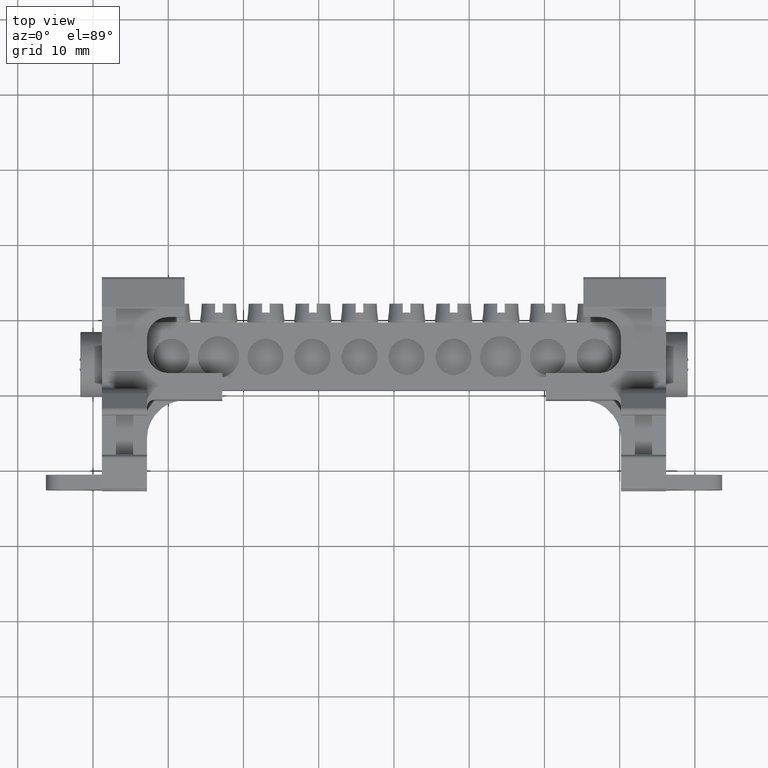
[diagram: clean part render]
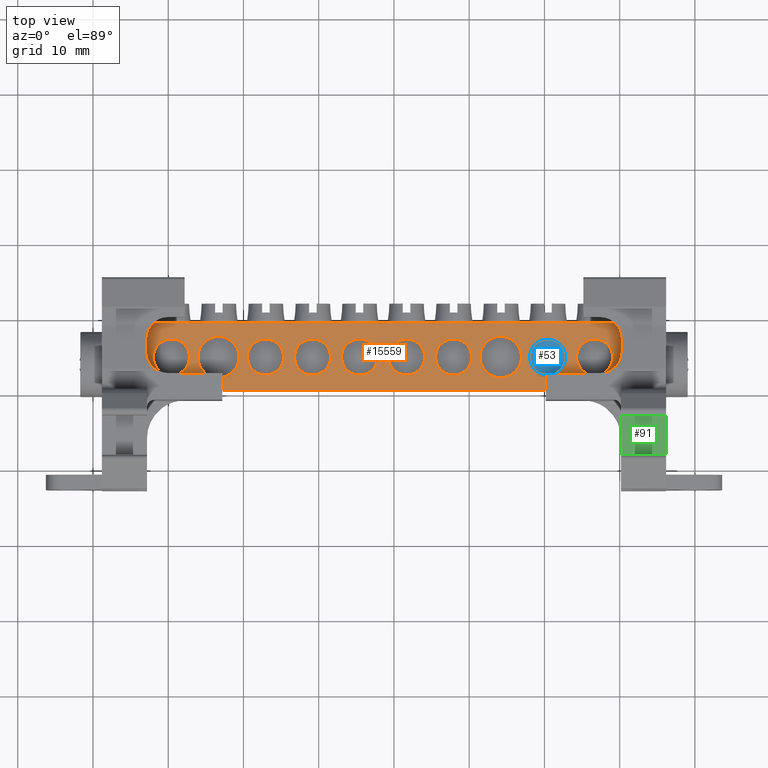
[diagram: same view with three faces highlighted in distinct colors, each labeled with its STEP entity id]
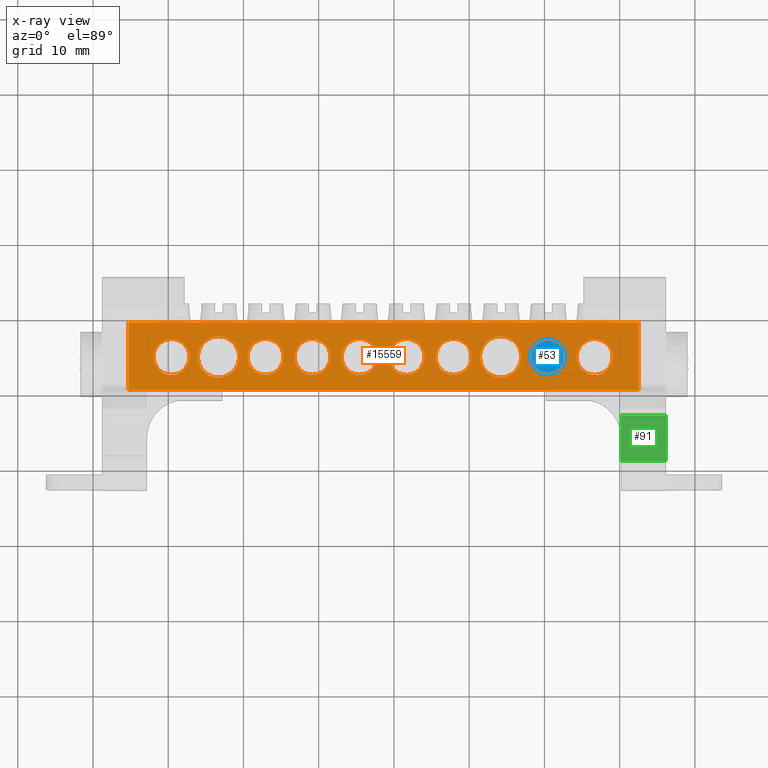
[diagram: x-ray of the same camera — body ghosted, the three highlighted faces saturated]
A machine part, top view with three faces highlighted in distinct colors.
The next image is the same camera in x-ray (body ghosted, the three faces saturated) — at least one of them is partly hidden behind the body in this view.
Their STEP definitions:

[orange] entity #15559 — the highlighted planar face has unit normal (-0, -0, 1).
#558 = AXIS2_PLACEMENT_3D ( 'NONE', #14377, #14375, #14341 ) ;
#1424 = CARTESIAN_POINT ( 'NONE',  ( -125.2916458143860400, -92.94444836901618600, 219.2213441700686800 ) ) ;
#2645 = LINE ( 'NONE', #2664, #13719 ) ;
#2664 = CARTESIAN_POINT ( 'NONE',  ( -69.82164581438648600, -90.50918132485030300, 219.2213441700660300 ) ) ;
#2713 = DIRECTION ( 'NONE',  ( -0.0000000000000000000, 1.000000000000000000, 1.302291607885310100E-013 ) ) ;
#2714 = LINE ( 'NONE', #2738, #13747 ) ;
#2715 = DIRECTION ( 'NONE',  ( -1.000000000000000000, -1.102107995711174800E-014, -1.434654200961729300E-027 ) ) ;
#2728 = CARTESIAN_POINT ( 'NONE',  ( -76.27164581438640300, -99.50918132485034600, 219.2213441700647500 ) ) ;
#2730 = LINE ( 'NONE', #2728, #13734 ) ;
#2738 = CARTESIAN_POINT ( 'NONE',  ( -76.27164581438650300, -90.50918132485034600, 219.2213441700660300 ) ) ;
#2750 = DIRECTION ( 'NONE',  ( 1.000000000000000000, 1.102107995711174800E-014, 1.434654200961729300E-027 ) ) ;
#2780 = CARTESIAN_POINT ( 'NONE',  ( -57.47164581438641300, -99.50918132484949300, 219.2213441700649000 ) ) ;
#2788 = LINE ( 'NONE', #2780, #13804 ) ;
#2799 = DIRECTION ( 'NONE',  ( -1.102107995711145400E-014, 1.000000000000000000, -0.0000000000000000000 ) ) ;
#3927 = VERTEX_POINT ( 'NONE', #16628 ) ;
#3942 = VERTEX_POINT ( 'NONE', #16654 ) ;
#3964 = VERTEX_POINT ( 'NONE', #16645 ) ;
#3988 = VERTEX_POINT ( 'NONE', #16706 ) ;
#3989 = VERTEX_POINT ( 'NONE', #16669 ) ;
#3990 = VERTEX_POINT ( 'NONE', #16698 ) ;
#4018 = VERTEX_POINT ( 'NONE', #16680 ) ;
#4030 = VERTEX_POINT ( 'NONE', #16719 ) ;
#4056 = VERTEX_POINT ( 'NONE', #6465 ) ;
#4080 = VERTEX_POINT ( 'NONE', #5886 ) ;
#4085 = VERTEX_POINT ( 'NONE', #5870 ) ;
#4113 = VERTEX_POINT ( 'NONE', #5861 ) ;
#4114 = VERTEX_POINT ( 'NONE', #5862 ) ;
#4117 = VERTEX_POINT ( 'NONE', #5877 ) ;
#4121 = VERTEX_POINT ( 'NONE', #5895 ) ;
#4132 = VERTEX_POINT ( 'NONE', #5898 ) ;
#4134 = VERTEX_POINT ( 'NONE', #5894 ) ;
#4143 = VERTEX_POINT ( 'NONE', #5908 ) ;
#4145 = VERTEX_POINT ( 'NONE', #5915 ) ;
#4146 = VERTEX_POINT ( 'NONE', #5916 ) ;
#4151 = VERTEX_POINT ( 'NONE', #5958 ) ;
#4155 = VERTEX_POINT ( 'NONE', #5933 ) ;
#4158 = VERTEX_POINT ( 'NONE', #5940 ) ;
#4160 = VERTEX_POINT ( 'NONE', #5955 ) ;
#4171 = VERTEX_POINT ( 'NONE', #5941 ) ;
#4172 = VERTEX_POINT ( 'NONE', #5942 ) ;
#4220 = VERTEX_POINT ( 'NONE', #5973 ) ;
#4238 = VERTEX_POINT ( 'NONE', #6016 ) ;
#5072 = ORIENTED_EDGE ( 'NONE', *, *, #10482, .T. ) ;
#5075 = ORIENTED_EDGE ( 'NONE', *, *, #10366, .T. ) ;
#5077 = ORIENTED_EDGE ( 'NONE', *, *, #16877, .T. ) ;
#5080 = ORIENTED_EDGE ( 'NONE', *, *, #10615, .T. ) ;
#5081 = ORIENTED_EDGE ( 'NONE', *, *, #10604, .T. ) ;
#5093 = ORIENTED_EDGE ( 'NONE', *, *, #10463, .T. ) ;
#5095 = ORIENTED_EDGE ( 'NONE', *, *, #16826, .T. ) ;
#5101 = ORIENTED_EDGE ( 'NONE', *, *, #10401, .T. ) ;
#5102 = ORIENTED_EDGE ( 'NONE', *, *, #16859, .T. ) ;
#5113 = ORIENTED_EDGE ( 'NONE', *, *, #10456, .T. ) ;
#5114 = ORIENTED_EDGE ( 'NONE', *, *, #10435, .T. ) ;
#5124 = ORIENTED_EDGE ( 'NONE', *, *, #16751, .T. ) ;
#5128 = ORIENTED_EDGE ( 'NONE', *, *, #10282, .T. ) ;
#5137 = ORIENTED_EDGE ( 'NONE', *, *, #10658, .T. ) ;
#5142 = ORIENTED_EDGE ( 'NONE', *, *, #10565, .T. ) ;
#5147 = ORIENTED_EDGE ( 'NONE', *, *, #10538, .T. ) ;
#5150 = ORIENTED_EDGE ( 'NONE', *, *, #16804, .T. ) ;
#5154 = ORIENTED_EDGE ( 'NONE', *, *, #10450, .T. ) ;
#5161 = ORIENTED_EDGE ( 'NONE', *, *, #10373, .T. ) ;
#5171 = ORIENTED_EDGE ( 'NONE', *, *, #16831, .T. ) ;
#5177 = ORIENTED_EDGE ( 'NONE', *, *, #16853, .T. ) ;
#5179 = ORIENTED_EDGE ( 'NONE', *, *, #10443, .T. ) ;
#5188 = ORIENTED_EDGE ( 'NONE', *, *, #16857, .T. ) ;
#5189 = ORIENTED_EDGE ( 'NONE', *, *, #10493, .T. ) ;
#5195 = ORIENTED_EDGE ( 'NONE', *, *, #10461, .T. ) ;
#5196 = ORIENTED_EDGE ( 'NONE', *, *, #10598, .T. ) ;
#5224 = ORIENTED_EDGE ( 'NONE', *, *, #10445, .T. ) ;
#5233 = ORIENTED_EDGE ( 'NONE', *, *, #16761, .T. ) ;
#5257 = ORIENTED_EDGE ( 'NONE', *, *, #16779, .T. ) ;
#5861 = CARTESIAN_POINT ( 'NONE',  ( -107.0716458143865100, -92.70918132485073200, 219.2213441700652900 ) ) ;
#5862 = CARTESIAN_POINT ( 'NONE',  ( -107.0716458143865100, -97.50918132485072900, 219.2213441700647000 ) ) ;
#5870 = CARTESIAN_POINT ( 'NONE',  ( -69.57164581438650000, -92.70918132485049100, 219.2213441700658600 ) ) ;
#5877 = CARTESIAN_POINT ( 'NONE',  ( -113.3216458143865100, -97.85918132485073800, 219.2213441700646400 ) ) ;
#5886 = CARTESIAN_POINT ( 'NONE',  ( -69.57164581438650000, -97.50918132485048800, 219.2213441700652700 ) ) ;
#5894 = CARTESIAN_POINT ( 'NONE',  ( -113.3216458143865100, -92.35918132485072400, 219.2213441700653500 ) ) ;
#5895 = CARTESIAN_POINT ( 'NONE',  ( -82.07164581438650000, -92.70918132485059000, 219.2213441700652900 ) ) ;
#5898 = CARTESIAN_POINT ( 'NONE',  ( -75.82164581438640000, -97.85918132485049600, 219.2213441700646400 ) ) ;
#5908 = CARTESIAN_POINT ( 'NONE',  ( -94.57164581438641400, -97.50918132485082900, 219.2213441700650700 ) ) ;
#5915 = CARTESIAN_POINT ( 'NONE',  ( -82.07164581438650000, -97.50918132485058700, 219.2213441700647000 ) ) ;
#5916 = CARTESIAN_POINT ( 'NONE',  ( -119.5716458143864000, -92.70918132485080300, 219.2213441700652900 ) ) ;
#5933 = CARTESIAN_POINT ( 'NONE',  ( -94.57164581438641400, -92.70918132485083200, 219.2213441700656600 ) ) ;
#5940 = CARTESIAN_POINT ( 'NONE',  ( -88.32164581438644300, -92.70918132485083200, 219.2213441700656600 ) ) ;
#5941 = CARTESIAN_POINT ( 'NONE',  ( -100.8216458143865000, -97.50918132485058700, 219.2213441700647000 ) ) ;
#5942 = CARTESIAN_POINT ( 'NONE',  ( -63.32164581438640000, -97.50918132485040200, 219.2213441700652700 ) ) ;
#5955 = CARTESIAN_POINT ( 'NONE',  ( -119.5716458143864000, -97.50918132485080000, 219.2213441700647000 ) ) ;
#5958 = CARTESIAN_POINT ( 'NONE',  ( -75.82164581438640000, -92.35918132485049600, 219.2213441700653500 ) ) ;
#5973 = CARTESIAN_POINT ( 'NONE',  ( -100.8216458143865000, -92.70918132485059000, 219.2213441700652900 ) ) ;
#6016 = CARTESIAN_POINT ( 'NONE',  ( -63.32164581438640000, -92.70918132485039100, 219.2213441700658600 ) ) ;
#6465 = CARTESIAN_POINT ( 'NONE',  ( -88.32164581438644300, -97.50918132485082900, 219.2213441700650700 ) ) ;
#8324 = EDGE_LOOP ( 'NONE', ( #5080, #5114, #5075, #5161, #5142, #5196, #5081, #5147, #5137 ) ) ;
#8345 = EDGE_LOOP ( 'NONE', ( #5128, #5095 ) ) ;
#8359 = EDGE_LOOP ( 'NONE', ( #5093, #5077 ) ) ;
#8362 = EDGE_LOOP ( 'NONE', ( #5113, #5102 ) ) ;
#8386 = EDGE_LOOP ( 'NONE', ( #5072, #5233 ) ) ;
#8398 = EDGE_LOOP ( 'NONE', ( #5101, #5124 ) ) ;
#8427 = EDGE_LOOP ( 'NONE', ( #5224, #5177 ) ) ;
#8438 = EDGE_LOOP ( 'NONE', ( #5179, #5171 ) ) ;
#8474 = EDGE_LOOP ( 'NONE', ( #5195, #5188 ) ) ;
#8494 = EDGE_LOOP ( 'NONE', ( #5154, #5257 ) ) ;
#8496 = EDGE_LOOP ( 'NONE', ( #5189, #5150 ) ) ;
#9348 = CARTESIAN_POINT ( 'NONE',  ( -82.07164581438650000, -95.10918132485059600, 219.2213441700650100 ) ) ;
#9349 = DIRECTION ( 'NONE',  ( 2.356061070560435300E-015, 1.299516050323746000E-013, -1.000000000000000000 ) ) ;
#9351 = DIRECTION ( 'NONE',  ( 0.0000000000000000000, 1.000000000000000000, 1.272130549049658700E-013 ) ) ;
#9809 = CARTESIAN_POINT ( 'NONE',  ( -125.2916458143859600, -90.50918132485030300, 219.2213441700658900 ) ) ;
#9810 = DIRECTION ( 'NONE',  ( 0.0000000000000000000, -1.000000000000000000, -1.302291607885310100E-013 ) ) ;
#9822 = LINE ( 'NONE', #9809, #13636 ) ;
#9844 = DIRECTION ( 'NONE',  ( 1.000000000000000000, -3.068278559856131500E-028, 2.356061070560432900E-015 ) ) ;
#9848 = CARTESIAN_POINT ( 'NONE',  ( -76.27164581438650300, -99.50797067425703800, 219.2213441700648400 ) ) ;
#9896 = LINE ( 'NONE', #9848, #13617 ) ;
#10282 = EDGE_CURVE ( 'NONE', #4121, #4145, #13565, .T. ) ;
#10366 = EDGE_CURVE ( 'NONE', #20506, #3927, #9822, .T. ) ;
#10373 = EDGE_CURVE ( 'NONE', #3927, #3989, #9896, .T. ) ;
#10401 = EDGE_CURVE ( 'NONE', #4158, #4056, #13637, .T. ) ;
#10435 = EDGE_CURVE ( 'NONE', #3988, #20506, #13067, .T. ) ;
#10443 = EDGE_CURVE ( 'NONE', #4146, #4160, #13607, .T. ) ;
#10445 = EDGE_CURVE ( 'NONE', #4113, #4114, #13646, .T. ) ;
#10450 = EDGE_CURVE ( 'NONE', #4220, #4171, #13694, .T. ) ;
#10456 = EDGE_CURVE ( 'NONE', #4151, #4132, #13647, .T. ) ;
#10461 = EDGE_CURVE ( 'NONE', #4134, #4117, #13641, .T. ) ;
#10463 = EDGE_CURVE ( 'NONE', #4155, #4143, #13661, .T. ) ;
#10482 = EDGE_CURVE ( 'NONE', #4085, #4080, #13687, .T. ) ;
#10493 = EDGE_CURVE ( 'NONE', #4238, #4172, #13663, .T. ) ;
#10538 = EDGE_CURVE ( 'NONE', #3942, #4030, #12716, .T. ) ;
#10565 = EDGE_CURVE ( 'NONE', #3989, #3964, #12816, .T. ) ;
#10598 = EDGE_CURVE ( 'NONE', #3964, #4018, #2730, .T. ) ;
#10604 = EDGE_CURVE ( 'NONE', #4018, #3942, #2645, .T. ) ;
#10615 = EDGE_CURVE ( 'NONE', #3990, #3988, #2714, .T. ) ;
#10658 = EDGE_CURVE ( 'NONE', #4030, #3990, #2788, .T. ) ;
#12716 = LINE ( 'NONE', #12718, #13662 ) ;
#12718 = CARTESIAN_POINT ( 'NONE',  ( -49.83724615968759500, -99.50797067425483500, 219.2213441700648400 ) ) ;
#12748 = DIRECTION ( 'NONE',  ( 1.000000000000000000, 1.100161628464520100E-014, 1.440180480661057200E-027 ) ) ;
#12777 = DIRECTION ( 'NONE',  ( 0.0000000000000000000, -1.000000000000000000, -1.302291607885310100E-013 ) ) ;
#12779 = CARTESIAN_POINT ( 'NONE',  ( -112.8216458143857200, -90.50918132485030300, 219.2213441700659200 ) ) ;
#12816 = LINE ( 'NONE', #12779, #13759 ) ;
#13014 = CARTESIAN_POINT ( 'NONE',  ( -88.32164581438644300, -95.10918132485082300, 219.2213441700653500 ) ) ;
#13043 = DIRECTION ( 'NONE',  ( 2.356061070560435300E-015, 1.300071161836058300E-013, -1.000000000000000000 ) ) ;
#13051 = DIRECTION ( 'NONE',  ( 0.0000000000000000000, 1.000000000000000000, 1.272130549049658700E-013 ) ) ;
#13060 = DIRECTION ( 'NONE',  ( 2.356061070560435300E-015, 1.299516050323746000E-013, -1.000000000000000000 ) ) ;
#13062 = DIRECTION ( 'NONE',  ( 2.356061070560435300E-015, 1.299516050323746000E-013, -1.000000000000000000 ) ) ;
#13064 = DIRECTION ( 'NONE',  ( 2.356061070560435300E-015, 1.299516050323746000E-013, -1.000000000000000000 ) ) ;
#13065 = CARTESIAN_POINT ( 'NONE',  ( -119.5716458143864000, -95.10918132485079500, 219.2213441700650100 ) ) ;
#13067 = LINE ( 'NONE', #13081, #13603 ) ;
#13068 = DIRECTION ( 'NONE',  ( 0.0000000000000000000, 1.000000000000000000, 1.272130549049658700E-013 ) ) ;
#13071 = DIRECTION ( 'NONE',  ( 0.0000000000000000000, -1.000000000000000000, -1.302291607885310100E-013 ) ) ;
#13072 = CARTESIAN_POINT ( 'NONE',  ( -75.82164581438640000, -95.10918132485049600, 219.2213441700650100 ) ) ;
#13074 = DIRECTION ( 'NONE',  ( 0.0000000000000000000, 1.000000000000000000, 1.312081756375183700E-013 ) ) ;
#13075 = DIRECTION ( 'NONE',  ( 2.356061070560435300E-015, 1.299516050323746000E-013, -1.000000000000000000 ) ) ;
#13081 = CARTESIAN_POINT ( 'NONE',  ( -125.2916458143864000, -90.50918132485030300, 219.2213441700658900 ) ) ;
#13082 = CARTESIAN_POINT ( 'NONE',  ( -100.8216458143865000, -95.10918132485059600, 219.2213441700650100 ) ) ;
#13085 = DIRECTION ( 'NONE',  ( 2.356061070560435300E-015, 1.299516050323746000E-013, -1.000000000000000000 ) ) ;
#13091 = CARTESIAN_POINT ( 'NONE',  ( -107.0716458143865100, -95.10918132485072400, 219.2213441700650100 ) ) ;
#13096 = DIRECTION ( 'NONE',  ( 0.0000000000000000000, 1.000000000000000000, 1.272130549049658700E-013 ) ) ;
#13097 = DIRECTION ( 'NONE',  ( 0.0000000000000000000, 1.000000000000000000, 1.272130549049658700E-013 ) ) ;
#13113 = CARTESIAN_POINT ( 'NONE',  ( -69.57164581438650000, -95.10918132485049600, 219.2213441700655500 ) ) ;
#13114 = DIRECTION ( 'NONE',  ( 0.0000000000000000000, 1.000000000000000000, 1.272130549049658700E-013 ) ) ;
#13115 = DIRECTION ( 'NONE',  ( 2.356061070560435300E-015, 1.299516050323746000E-013, -1.000000000000000000 ) ) ;
#13116 = DIRECTION ( 'NONE',  ( 0.0000000000000000000, 1.000000000000000000, 1.312081756375183700E-013 ) ) ;
#13117 = DIRECTION ( 'NONE',  ( 2.356061070560435300E-015, 1.300071161836058300E-013, -1.000000000000000000 ) ) ;
#13118 = CARTESIAN_POINT ( 'NONE',  ( -94.57164581438641400, -95.10918132485082300, 219.2213441700653500 ) ) ;
#13124 = CARTESIAN_POINT ( 'NONE',  ( -113.3216458143865100, -95.10918132485072400, 219.2213441700650100 ) ) ;
#13517 = AXIS2_PLACEMENT_3D ( 'NONE', #9348, #9349, #9351 ) ;
#13565 = CIRCLE ( 'NONE', #13517, 2.399999999999999500 ) ;
#13603 = VECTOR ( 'NONE', #13071, 1000.000000000000000 ) ;
#13607 = CIRCLE ( 'NONE', #13608, 2.399999999999999500 ) ;
#13608 = AXIS2_PLACEMENT_3D ( 'NONE', #13065, #13064, #13097 ) ;
#13617 = VECTOR ( 'NONE', #9844, 1000.000000000000000 ) ;
#13636 = VECTOR ( 'NONE', #9810, 1000.000000000000000 ) ;
#13637 = CIRCLE ( 'NONE', #13638, 2.399999999999999500 ) ;
#13638 = AXIS2_PLACEMENT_3D ( 'NONE', #13014, #13043, #13051 ) ;
#13641 = CIRCLE ( 'NONE', #13670, 2.750000000000002700 ) ;
#13644 = AXIS2_PLACEMENT_3D ( 'NONE', #13072, #13062, #13074 ) ;
#13646 = CIRCLE ( 'NONE', #13679, 2.399999999999999500 ) ;
#13647 = CIRCLE ( 'NONE', #13644, 2.750000000000002700 ) ;
#13651 = AXIS2_PLACEMENT_3D ( 'NONE', #13118, #13117, #13114 ) ;
#13661 = CIRCLE ( 'NONE', #13651, 2.399999999999999500 ) ;
#13662 = VECTOR ( 'NONE', #12748, 1000.000000000000000 ) ;
#13663 = CIRCLE ( 'NONE', #13689, 2.399999999999999500 ) ;
#13670 = AXIS2_PLACEMENT_3D ( 'NONE', #13124, #13115, #13116 ) ;
#13679 = AXIS2_PLACEMENT_3D ( 'NONE', #13091, #13060, #13096 ) ;
#13682 = AXIS2_PLACEMENT_3D ( 'NONE', #13113, #13075, #21573 ) ;
#13684 = AXIS2_PLACEMENT_3D ( 'NONE', #13082, #13085, #13068 ) ;
#13687 = CIRCLE ( 'NONE', #13682, 2.399999999999999500 ) ;
#13689 = AXIS2_PLACEMENT_3D ( 'NONE', #21567, #21547, #21569 ) ;
#13694 = CIRCLE ( 'NONE', #13684, 2.399999999999999500 ) ;
#13719 = VECTOR ( 'NONE', #2713, 1000.000000000000000 ) ;
#13734 = VECTOR ( 'NONE', #2750, 1000.000000000000000 ) ;
#13747 = VECTOR ( 'NONE', #2715, 1000.000000000000000 ) ;
#13759 = VECTOR ( 'NONE', #12777, 1000.000000000000000 ) ;
#13804 = VECTOR ( 'NONE', #2799, 1000.000000000000000 ) ;
#14328 = FACE_OUTER_BOUND ( 'NONE', #8324, .T. ) ;
#14334 = FACE_BOUND ( 'NONE', #8427, .T. ) ;
#14335 = FACE_BOUND ( 'NONE', #8474, .T. ) ;
#14340 = FACE_BOUND ( 'NONE', #8345, .T. ) ;
#14341 = DIRECTION ( 'NONE',  ( 0.0000000000000000000, -1.000000000000000000, -1.302291607885310100E-013 ) ) ;
#14347 = FACE_BOUND ( 'NONE', #8496, .T. ) ;
#14348 = FACE_BOUND ( 'NONE', #8386, .T. ) ;
#14363 = FACE_BOUND ( 'NONE', #8398, .T. ) ;
#14366 = FACE_BOUND ( 'NONE', #8494, .T. ) ;
#14367 = FACE_BOUND ( 'NONE', #8359, .T. ) ;
#14368 = PLANE ( 'NONE',  #558 ) ;
#14372 = FACE_BOUND ( 'NONE', #8362, .T. ) ;
#14373 = FACE_BOUND ( 'NONE', #8438, .T. ) ;
#14375 = DIRECTION ( 'NONE',  ( -2.356061070560432900E-015, -1.302291607885310100E-013, 1.000000000000000000 ) ) ;
#14377 = CARTESIAN_POINT ( 'NONE',  ( -76.27164581438650300, -90.50918132485030300, 219.2213441700660000 ) ) ;
#15559 = ADVANCED_FACE ( 'NONE', ( #14328, #14367, #14363, #14340, #14372, #14348, #14347, #14366, #14373, #14335, #14334 ), #14368, .T. ) ;
#16628 = CARTESIAN_POINT ( 'NONE',  ( -125.2916458143859300, -99.50797067425703800, 219.2213441700647000 ) ) ;
#16645 = CARTESIAN_POINT ( 'NONE',  ( -112.8216458143857000, -99.50918132485074400, 219.2213441700647500 ) ) ;
#16654 = CARTESIAN_POINT ( 'NONE',  ( -69.82164581438648600, -99.50797067425506300, 219.2213441700648400 ) ) ;
#16669 = CARTESIAN_POINT ( 'NONE',  ( -112.8216458143857200, -99.50797067425701000, 219.2213441700647500 ) ) ;
#16680 = CARTESIAN_POINT ( 'NONE',  ( -69.82164581438648600, -99.50918132485027500, 219.2213441700648100 ) ) ;
#16698 = CARTESIAN_POINT ( 'NONE',  ( -57.47164581438651300, -90.50918132485020400, 219.2213441700652700 ) ) ;
#16706 = CARTESIAN_POINT ( 'NONE',  ( -125.2916458143864000, -90.50918132485085700, 219.2213441700659200 ) ) ;
#16719 = CARTESIAN_POINT ( 'NONE',  ( -57.47164581438641300, -99.50797067425438100, 219.2213441700648700 ) ) ;
#16751 = EDGE_CURVE ( 'NONE', #4056, #4158, #23380, .T. ) ;
#16761 = EDGE_CURVE ( 'NONE', #4080, #4085, #23401, .T. ) ;
#16779 = EDGE_CURVE ( 'NONE', #4171, #4220, #23444, .T. ) ;
#16804 = EDGE_CURVE ( 'NONE', #4172, #4238, #23474, .T. ) ;
#16826 = EDGE_CURVE ( 'NONE', #4145, #4121, #23475, .T. ) ;
#16831 = EDGE_CURVE ( 'NONE', #4160, #4146, #23461, .T. ) ;
#16853 = EDGE_CURVE ( 'NONE', #4114, #4113, #23479, .T. ) ;
#16857 = EDGE_CURVE ( 'NONE', #4117, #4134, #23483, .T. ) ;
#16859 = EDGE_CURVE ( 'NONE', #4132, #4151, #23455, .T. ) ;
#16877 = EDGE_CURVE ( 'NONE', #4143, #4155, #23426, .T. ) ;
#20506 = VERTEX_POINT ( 'NONE', #1424 ) ;
#21547 = DIRECTION ( 'NONE',  ( 2.356061070560435300E-015, 1.299516050323746000E-013, -1.000000000000000000 ) ) ;
#21567 = CARTESIAN_POINT ( 'NONE',  ( -63.32164581438640000, -95.10918132485039700, 219.2213441700655500 ) ) ;
#21569 = DIRECTION ( 'NONE',  ( 0.0000000000000000000, 1.000000000000000000, 1.272130549049658700E-013 ) ) ;
#21573 = DIRECTION ( 'NONE',  ( 0.0000000000000000000, 1.000000000000000000, 1.272130549049658700E-013 ) ) ;
#22727 = DIRECTION ( 'NONE',  ( 0.0000000000000000000, 1.000000000000000000, 1.272130549049658700E-013 ) ) ;
#22742 = CARTESIAN_POINT ( 'NONE',  ( -88.32164581438644300, -95.10918132485082300, 219.2213441700653500 ) ) ;
#22763 = DIRECTION ( 'NONE',  ( 2.356061070560435300E-015, 1.300071161836058300E-013, -1.000000000000000000 ) ) ;
#22776 = DIRECTION ( 'NONE',  ( 0.0000000000000000000, 1.000000000000000000, 1.272130549049658700E-013 ) ) ;
#22783 = DIRECTION ( 'NONE',  ( 2.356061070560435300E-015, 1.299516050323746000E-013, -1.000000000000000000 ) ) ;
#22793 = CARTESIAN_POINT ( 'NONE',  ( -69.57164581438650000, -95.10918132485049600, 219.2213441700655500 ) ) ;
#22822 = DIRECTION ( 'NONE',  ( 2.356061070560435300E-015, 1.299516050323746000E-013, -1.000000000000000000 ) ) ;
#22840 = CARTESIAN_POINT ( 'NONE',  ( -100.8216458143865000, -95.10918132485059600, 219.2213441700650100 ) ) ;
#22842 = DIRECTION ( 'NONE',  ( 0.0000000000000000000, 1.000000000000000000, 1.272130549049658700E-013 ) ) ;
#22845 = DIRECTION ( 'NONE',  ( 2.356061070560435300E-015, 1.299516050323746000E-013, -1.000000000000000000 ) ) ;
#22849 = DIRECTION ( 'NONE',  ( 0.0000000000000000000, 1.000000000000000000, 1.272130549049658700E-013 ) ) ;
#22855 = CARTESIAN_POINT ( 'NONE',  ( -63.32164581438640000, -95.10918132485039700, 219.2213441700655500 ) ) ;
#22864 = CARTESIAN_POINT ( 'NONE',  ( -82.07164581438650000, -95.10918132485059600, 219.2213441700650100 ) ) ;
#22866 = DIRECTION ( 'NONE',  ( 0.0000000000000000000, 1.000000000000000000, 1.272130549049658700E-013 ) ) ;
#22873 = CARTESIAN_POINT ( 'NONE',  ( -119.5716458143864000, -95.10918132485079500, 219.2213441700650100 ) ) ;
#22877 = DIRECTION ( 'NONE',  ( 2.356061070560435300E-015, 1.299516050323746000E-013, -1.000000000000000000 ) ) ;
#22883 = DIRECTION ( 'NONE',  ( 2.356061070560435300E-015, 1.299516050323746000E-013, -1.000000000000000000 ) ) ;
#22899 = DIRECTION ( 'NONE',  ( 0.0000000000000000000, 1.000000000000000000, 1.272130549049658700E-013 ) ) ;
#22907 = DIRECTION ( 'NONE',  ( 2.356061070560435300E-015, 1.299516050323746000E-013, -1.000000000000000000 ) ) ;
#22909 = CARTESIAN_POINT ( 'NONE',  ( -113.3216458143865100, -95.10918132485072400, 219.2213441700650100 ) ) ;
#22910 = CARTESIAN_POINT ( 'NONE',  ( -107.0716458143865100, -95.10918132485072400, 219.2213441700650100 ) ) ;
#22912 = DIRECTION ( 'NONE',  ( 2.356061070560435300E-015, 1.300071161836058300E-013, -1.000000000000000000 ) ) ;
#22913 = DIRECTION ( 'NONE',  ( 2.356061070560435300E-015, 1.299516050323746000E-013, -1.000000000000000000 ) ) ;
#22921 = DIRECTION ( 'NONE',  ( 0.0000000000000000000, 1.000000000000000000, 1.312081756375183700E-013 ) ) ;
#22922 = DIRECTION ( 'NONE',  ( 0.0000000000000000000, 1.000000000000000000, 1.272130549049658700E-013 ) ) ;
#22925 = CARTESIAN_POINT ( 'NONE',  ( -75.82164581438640000, -95.10918132485049600, 219.2213441700650100 ) ) ;
#22927 = DIRECTION ( 'NONE',  ( 0.0000000000000000000, 1.000000000000000000, 1.272130549049658700E-013 ) ) ;
#22929 = DIRECTION ( 'NONE',  ( 0.0000000000000000000, 1.000000000000000000, 1.312081756375183700E-013 ) ) ;
#22936 = CARTESIAN_POINT ( 'NONE',  ( -94.57164581438641400, -95.10918132485082300, 219.2213441700653500 ) ) ;
#22937 = DIRECTION ( 'NONE',  ( 2.356061070560435300E-015, 1.299516050323746000E-013, -1.000000000000000000 ) ) ;
#23380 = CIRCLE ( 'NONE', #23384, 2.399999999999999500 ) ;
#23384 = AXIS2_PLACEMENT_3D ( 'NONE', #22742, #22763, #22727 ) ;
#23390 = AXIS2_PLACEMENT_3D ( 'NONE', #22793, #22783, #22776 ) ;
#23401 = CIRCLE ( 'NONE', #23390, 2.399999999999999500 ) ;
#23426 = CIRCLE ( 'NONE', #23433, 2.399999999999999500 ) ;
#23430 = AXIS2_PLACEMENT_3D ( 'NONE', #22910, #22907, #22922 ) ;
#23433 = AXIS2_PLACEMENT_3D ( 'NONE', #22936, #22912, #22927 ) ;
#23439 = AXIS2_PLACEMENT_3D ( 'NONE', #22925, #22913, #22929 ) ;
#23444 = CIRCLE ( 'NONE', #23468, 2.399999999999999500 ) ;
#23452 = AXIS2_PLACEMENT_3D ( 'NONE', #22864, #22883, #22899 ) ;
#23455 = CIRCLE ( 'NONE', #23439, 2.750000000000002700 ) ;
#23458 = AXIS2_PLACEMENT_3D ( 'NONE', #22873, #22877, #22866 ) ;
#23461 = CIRCLE ( 'NONE', #23458, 2.399999999999999500 ) ;
#23466 = AXIS2_PLACEMENT_3D ( 'NONE', #22855, #22845, #22842 ) ;
#23468 = AXIS2_PLACEMENT_3D ( 'NONE', #22840, #22822, #22849 ) ;
#23472 = AXIS2_PLACEMENT_3D ( 'NONE', #22909, #22937, #22921 ) ;
#23474 = CIRCLE ( 'NONE', #23466, 2.399999999999999500 ) ;
#23475 = CIRCLE ( 'NONE', #23452, 2.399999999999999500 ) ;
#23479 = CIRCLE ( 'NONE', #23430, 2.399999999999999500 ) ;
#23483 = CIRCLE ( 'NONE', #23472, 2.750000000000002700 ) ;

[blue] entity #53 — the highlighted planar face has unit normal (0, 0, 1).
#53 = ADVANCED_FACE ( 'NONE', ( #17279 ), #17245, .T. ) ;
#2041 = AXIS2_PLACEMENT_3D ( 'NONE', #17243, #17276, #17277 ) ;
#4129 = VERTEX_POINT ( 'NONE', #5902 ) ;
#4140 = VERTEX_POINT ( 'NONE', #5906 ) ;
#4726 = ORIENTED_EDGE ( 'NONE', *, *, #16762, .T. ) ;
#4751 = ORIENTED_EDGE ( 'NONE', *, *, #10161, .T. ) ;
#5902 = CARTESIAN_POINT ( 'NONE',  ( -69.57164581438650000, -92.70918132485042000, 218.7213441700785400 ) ) ;
#5906 = CARTESIAN_POINT ( 'NONE',  ( -69.57164581438650000, -97.50918132485043100, 218.7213441700779400 ) ) ;
#8272 = EDGE_LOOP ( 'NONE', ( #4726, #4751 ) ) ;
#10161 = EDGE_CURVE ( 'NONE', #4140, #4129, #13458, .T. ) ;
#13458 = CIRCLE ( 'NONE', #13494, 2.399999999999999500 ) ;
#13494 = AXIS2_PLACEMENT_3D ( 'NONE', #22188, #22218, #22153 ) ;
#16762 = EDGE_CURVE ( 'NONE', #4129, #4140, #23413, .T. ) ;
#17243 = CARTESIAN_POINT ( 'NONE',  ( -57.97164581438640600, -99.00918132485030300, 218.7213441700779400 ) ) ;
#17245 = PLANE ( 'NONE',  #2041 ) ;
#17276 = DIRECTION ( 'NONE',  ( 0.0000000000000000000, 0.0000000000000000000, 1.000000000000000000 ) ) ;
#17277 = DIRECTION ( 'NONE',  ( 1.000000000000000000, 0.0000000000000000000, -0.0000000000000000000 ) ) ;
#17279 = FACE_OUTER_BOUND ( 'NONE', #8272, .T. ) ;
#22153 = DIRECTION ( 'NONE',  ( 0.0000000000000000000, 1.000000000000000000, 1.272130549049658700E-013 ) ) ;
#22188 = CARTESIAN_POINT ( 'NONE',  ( -69.57164581438650000, -95.10918132485042500, 218.7213441700782500 ) ) ;
#22218 = DIRECTION ( 'NONE',  ( -2.356061070560435300E-015, -1.299516050323746000E-013, 1.000000000000000000 ) ) ;
#22784 = DIRECTION ( 'NONE',  ( 0.0000000000000000000, 1.000000000000000000, 1.272130549049658700E-013 ) ) ;
#22796 = CARTESIAN_POINT ( 'NONE',  ( -69.57164581438650000, -95.10918132485042500, 218.7213441700782500 ) ) ;
#22799 = DIRECTION ( 'NONE',  ( -2.356061070560435300E-015, -1.299516050323746000E-013, 1.000000000000000000 ) ) ;
#23413 = CIRCLE ( 'NONE', #23422, 2.399999999999999500 ) ;
#23422 = AXIS2_PLACEMENT_3D ( 'NONE', #22796, #22799, #22784 ) ;

[green] entity #91 — the highlighted planar face has unit normal (0, 0, -1).
#91 = ADVANCED_FACE ( 'NONE', ( #17487 ), #17430, .F. ) ;
#774 = VECTOR ( 'NONE', #9436, 1000.000000000000000 ) ;
#805 = VECTOR ( 'NONE', #9550, 1000.000000000000000 ) ;
#2114 = AXIS2_PLACEMENT_3D ( 'NONE', #17472, #17462, #17465 ) ;
#3606 = VERTEX_POINT ( 'NONE', #16313 ) ;
#3666 = VERTEX_POINT ( 'NONE', #16354 ) ;
#3695 = VERTEX_POINT ( 'NONE', #16375 ) ;
#3717 = VERTEX_POINT ( 'NONE', #16454 ) ;
#8214 = EDGE_LOOP ( 'NONE', ( #19206, #19220, #19298, #19264 ) ) ;
#9436 = DIRECTION ( 'NONE',  ( -1.000000000000000000, 0.0000000000000000000, -2.403906012228000300E-015 ) ) ;
#9449 = LINE ( 'NONE', #9471, #774 ) ;
#9471 = CARTESIAN_POINT ( 'NONE',  ( -53.82164581438651400, -109.0561093426186700, 225.4915483486265100 ) ) ;
#9516 = CARTESIAN_POINT ( 'NONE',  ( -53.82164581438651400, -102.9868233934830100, 225.4915483486265100 ) ) ;
#9531 = LINE ( 'NONE', #9516, #805 ) ;
#9550 = DIRECTION ( 'NONE',  ( 1.000000000000000000, -0.0000000000000000000, 2.403906012228000300E-015 ) ) ;
#15763 = EDGE_CURVE ( 'NONE', #3717, #3666, #9449, .T. ) ;
#15776 = EDGE_CURVE ( 'NONE', #3606, #3695, #9531, .T. ) ;
#16098 = EDGE_CURVE ( 'NONE', #3666, #3606, #22483, .T. ) ;
#16127 = EDGE_CURVE ( 'NONE', #3695, #3717, #22542, .T. ) ;
#16313 = CARTESIAN_POINT ( 'NONE',  ( -59.82164581438648600, -102.9868233934829800, 225.4915483486264200 ) ) ;
#16354 = CARTESIAN_POINT ( 'NONE',  ( -59.82164581438640000, -109.0561093426186800, 225.4915483486262800 ) ) ;
#16375 = CARTESIAN_POINT ( 'NONE',  ( -53.82164581438645700, -102.9868232435760100, 225.4915483486265100 ) ) ;
#16454 = CARTESIAN_POINT ( 'NONE',  ( -53.82164581438639300, -109.0561093426186400, 225.4915483486263400 ) ) ;
#17430 = PLANE ( 'NONE',  #2114 ) ;
#17462 = DIRECTION ( 'NONE',  ( 2.403906012228000300E-015, 2.684210046068795300E-029, -1.000000000000000000 ) ) ;
#17465 = DIRECTION ( 'NONE',  ( -1.000000000000000000, 0.0000000000000000000, -2.403906012228000300E-015 ) ) ;
#17472 = CARTESIAN_POINT ( 'NONE',  ( -53.82164581438651400, -99.69110807736362300, 225.4915483486265100 ) ) ;
#17487 = FACE_OUTER_BOUND ( 'NONE', #8214, .T. ) ;
#19206 = ORIENTED_EDGE ( 'NONE', *, *, #15776, .F. ) ;
#19220 = ORIENTED_EDGE ( 'NONE', *, *, #16098, .F. ) ;
#19264 = ORIENTED_EDGE ( 'NONE', *, *, #16127, .F. ) ;
#19298 = ORIENTED_EDGE ( 'NONE', *, *, #15763, .F. ) ;
#22457 = DIRECTION ( 'NONE',  ( 3.247763491985500000E-028, 1.000000000000000000, 7.639665454295208800E-043 ) ) ;
#22466 = CARTESIAN_POINT ( 'NONE',  ( -59.82164581438648600, -104.1738188390610000, 225.4915483486263100 ) ) ;
#22483 = LINE ( 'NONE', #22466, #23349 ) ;
#22532 = DIRECTION ( 'NONE',  ( 1.111883425166246100E-014, -1.000000000000000000, -0.0000000000000000000 ) ) ;
#22541 = CARTESIAN_POINT ( 'NONE',  ( -53.82164581438649300, -99.69110807736362300, 225.4915483486265100 ) ) ;
#22542 = LINE ( 'NONE', #22541, #23310 ) ;
#23310 = VECTOR ( 'NONE', #22532, 1000.000000000000000 ) ;
#23349 = VECTOR ( 'NONE', #22457, 1000.000000000000000 ) ;